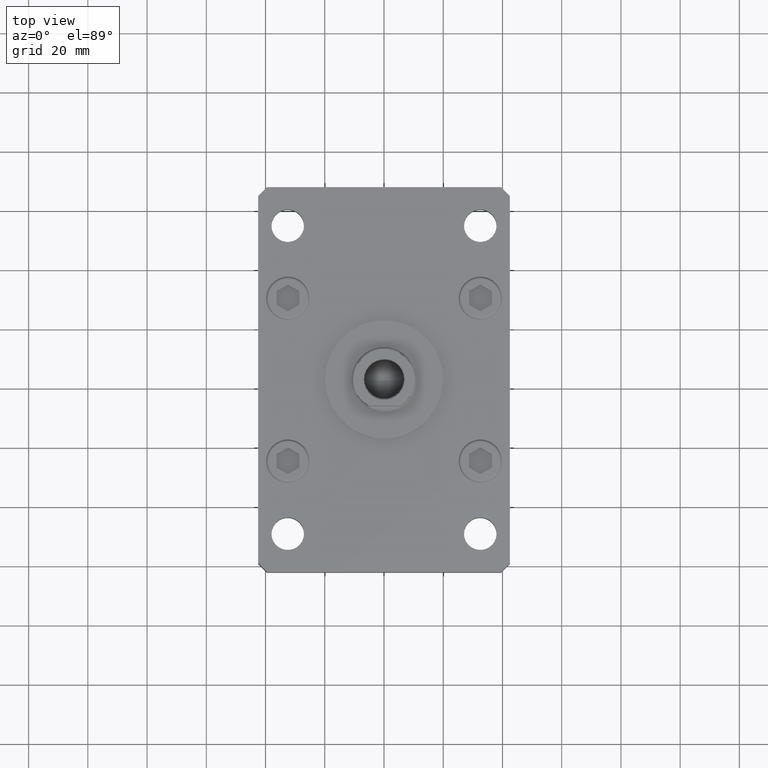
[diagram: clean part render]
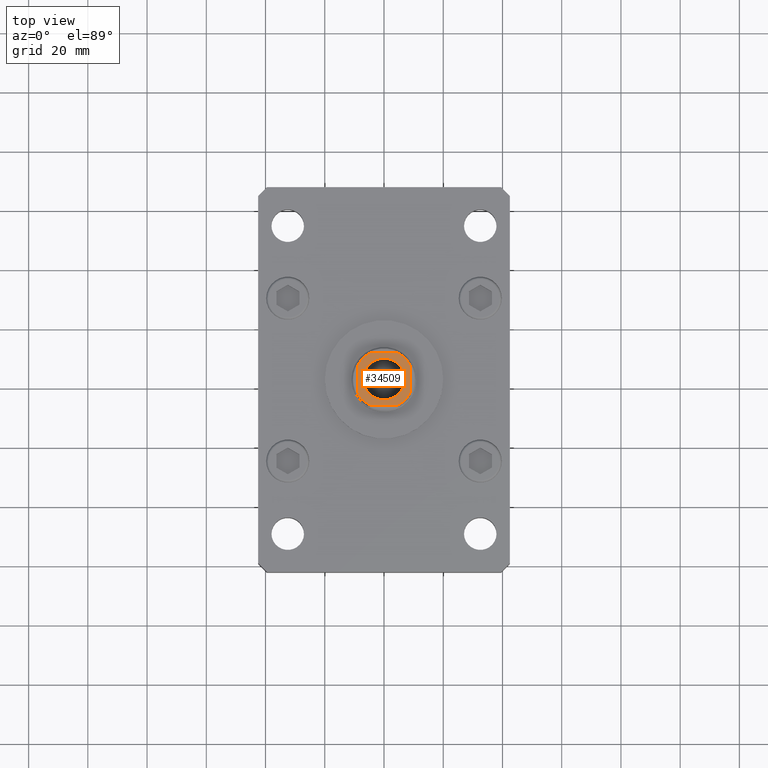
[diagram: same view with one face highlighted and labeled with its STEP entity id]
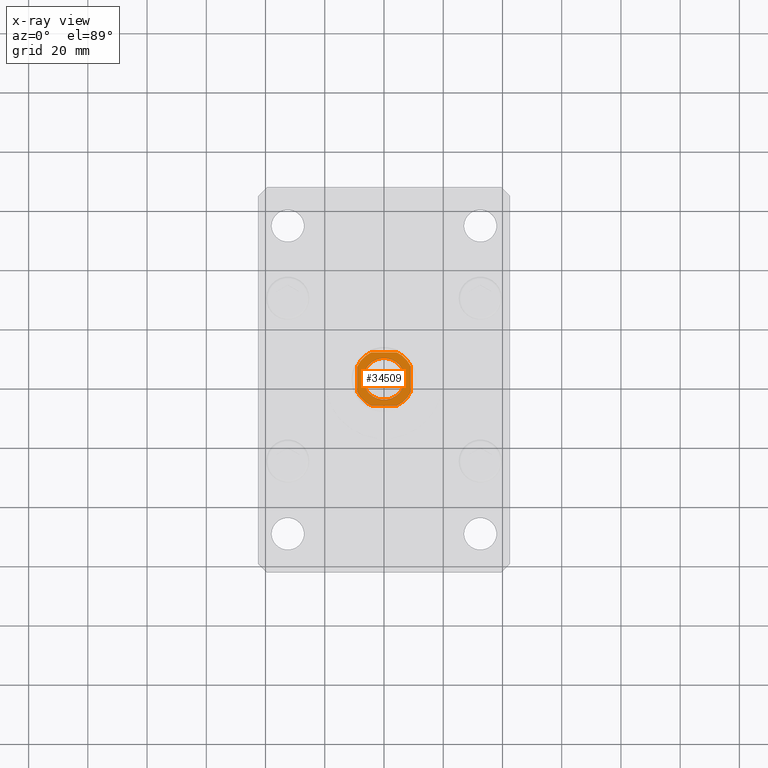
[diagram: x-ray of the same camera — body ghosted, the highlighted face saturated]
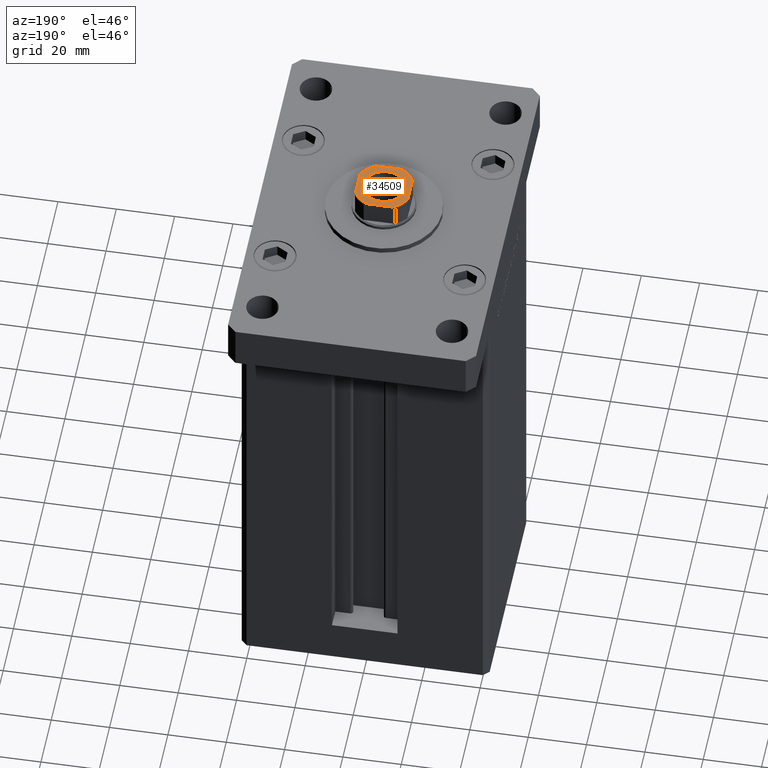
[diagram: same view with one face highlighted and labeled with its STEP entity id]
A machine part, top view. The second image highlights one B-rep face of the part: STEP entity #34509.
The next image is the same camera in x-ray: the body ghosted, the highlighted face saturated — about 0% of this face is hidden behind the body in this view.
A second angle (auxiliary view) of the same face is appended — the face is thin or edge-on in the first view.
In plain terms, the highlighted planar face has unit normal (0, 0, 1).
Its self-contained STEP definition (entity closure, byte-faithful):
#3 = CIRCLE ( 'NONE', #859, 7.049999999999986500 ) ;
#859 = AXIS2_PLACEMENT_3D ( 'NONE', #46993, #12616, #29156 ) ;
#1159 = EDGE_LOOP ( 'NONE', ( #35224, #29320 ) ) ;
#2752 = DIRECTION ( 'NONE',  ( -0.000000000000000000, 0.000000000000000000, 1.000000000000000000 ) ) ;
#3405 = CARTESIAN_POINT ( 'NONE',  ( 9.000000000000000000, 4.358898943540675752, 157.7500000000000000 ) ) ;
#4264 = AXIS2_PLACEMENT_3D ( 'NONE', #32564, #2752, #36652 ) ;
#4708 = CIRCLE ( 'NONE', #21133, 10.00000000000000000 ) ;
#4929 = AXIS2_PLACEMENT_3D ( 'NONE', #12228, #41554, #33664 ) ;
#5529 = ORIENTED_EDGE ( 'NONE', *, *, #7473, .T. ) ;
#5920 = CARTESIAN_POINT ( 'NONE',  ( 9.000000000000001776, -4.358898943540675752, 157.7500000000000000 ) ) ;
#6124 = ORIENTED_EDGE ( 'NONE', *, *, #15672, .T. ) ;
#6156 = CARTESIAN_POINT ( 'NONE',  ( 0.000000000000000000, 0.000000000000000000, 157.7500000000000000 ) ) ;
#6620 = DIRECTION ( 'NONE',  ( -0.000000000000000000, 0.000000000000000000, 1.000000000000000000 ) ) ;
#7451 = CIRCLE ( 'NONE', #32593, 10.00000000000000000 ) ;
#7473 = EDGE_CURVE ( 'NONE', #31453, #18294, #27411, .T. ) ;
#9755 = EDGE_CURVE ( 'NONE', #38448, #41141, #3, .T. ) ;
#9822 = ORIENTED_EDGE ( 'NONE', *, *, #36895, .T. ) ;
#10211 = DIRECTION ( 'NONE',  ( 0.000000000000000000, -0.000000000000000000, -1.000000000000000000 ) ) ;
#11455 = VERTEX_POINT ( 'NONE', #33466 ) ;
#11912 = DIRECTION ( 'NONE',  ( 1.000000000000000000, 0.000000000000000000, 0.000000000000000000 ) ) ;
#12228 = CARTESIAN_POINT ( 'NONE',  ( 0.000000000000000000, 0.000000000000000000, 157.7500000000000000 ) ) ;
#12616 = DIRECTION ( 'NONE',  ( 0.000000000000000000, -0.000000000000000000, -1.000000000000000000 ) ) ;
#14466 = ORIENTED_EDGE ( 'NONE', *, *, #41255, .T. ) ;
#14681 = LINE ( 'NONE', #18234, #36381 ) ;
#14943 = CARTESIAN_POINT ( 'NONE',  ( 0.000000000000000000, 0.000000000000000000, 157.7500000000000000 ) ) ;
#15672 = EDGE_CURVE ( 'NONE', #22648, #31528, #14681, .T. ) ;
#15795 = ORIENTED_EDGE ( 'NONE', *, *, #33011, .T. ) ;
#15802 = ORIENTED_EDGE ( 'NONE', *, *, #50809, .T. ) ;
#15986 = CARTESIAN_POINT ( 'NONE',  ( -8.999999999999998224, -9.000000000000001776, 157.7500000000000000 ) ) ;
#16006 = DIRECTION ( 'NONE',  ( -0.000000000000000000, 0.000000000000000000, 1.000000000000000000 ) ) ;
#16539 = LINE ( 'NONE', #15986, #52678 ) ;
#17115 = FACE_BOUND ( 'NONE', #1159, .T. ) ;
#17274 = VERTEX_POINT ( 'NONE', #47919 ) ;
#18002 = CARTESIAN_POINT ( 'NONE',  ( 4.358898943540671311, -9.000000000000001776, 157.7500000000000000 ) ) ;
#18234 = CARTESIAN_POINT ( 'NONE',  ( 9.000000000000000000, 8.999999999999998224, 157.7500000000000000 ) ) ;
#18294 = VERTEX_POINT ( 'NONE', #21349 ) ;
#18357 = CARTESIAN_POINT ( 'NONE',  ( 4.358898943540677529, 8.999999999999998224, 157.7500000000000000 ) ) ;
#19103 = DIRECTION ( 'NONE',  ( 1.000000000000000000, 0.000000000000000000, 0.000000000000000000 ) ) ;
#19562 = ORIENTED_EDGE ( 'NONE', *, *, #23111, .T. ) ;
#19648 = EDGE_CURVE ( 'NONE', #31528, #31453, #38381, .T. ) ;
#21025 = AXIS2_PLACEMENT_3D ( 'NONE', #43018, #6620, #19103 ) ;
#21133 = AXIS2_PLACEMENT_3D ( 'NONE', #14943, #16006, #36911 ) ;
#21349 = CARTESIAN_POINT ( 'NONE',  ( -4.358898943540678417, 8.999999999999998224, 157.7500000000000000 ) ) ;
#21818 = EDGE_LOOP ( 'NONE', ( #9822, #14466, #15802, #19562, #6124, #42419, #5529, #15795 ) ) ;
#22648 = VERTEX_POINT ( 'NONE', #5920 ) ;
#22806 = CARTESIAN_POINT ( 'NONE',  ( 7.049999999999986500, 0.000000000000000000, 157.7500000000000000 ) ) ;
#23111 = EDGE_CURVE ( 'NONE', #47199, #22648, #4708, .T. ) ;
#23243 = AXIS2_PLACEMENT_3D ( 'NONE', #6156, #10211, #30830 ) ;
#24137 = CIRCLE ( 'NONE', #4264, 10.00000000000000000 ) ;
#24635 = DIRECTION ( 'NONE',  ( 9.637352644315595243E-17, -1.000000000000000000, 0.000000000000000000 ) ) ;
#27411 = LINE ( 'NONE', #32039, #50144 ) ;
#29030 = FACE_OUTER_BOUND ( 'NONE', #21818, .T. ) ;
#29156 = DIRECTION ( 'NONE',  ( 1.000000000000000000, 0.000000000000000000, 0.000000000000000000 ) ) ;
#29320 = ORIENTED_EDGE ( 'NONE', *, *, #9755, .T. ) ;
#30655 = VERTEX_POINT ( 'NONE', #43887 ) ;
#30830 = DIRECTION ( 'NONE',  ( 1.000000000000000000, 0.000000000000000000, 0.000000000000000000 ) ) ;
#31453 = VERTEX_POINT ( 'NONE', #18357 ) ;
#31528 = VERTEX_POINT ( 'NONE', #3405 ) ;
#31746 = CARTESIAN_POINT ( 'NONE',  ( 0.000000000000000000, 0.000000000000000000, 157.7500000000000000 ) ) ;
#32039 = CARTESIAN_POINT ( 'NONE',  ( -9.000000000000000000, 8.999999999999998224, 157.7500000000000000 ) ) ;
#32524 = CARTESIAN_POINT ( 'NONE',  ( -9.000000000000000000, 8.999999999999998224, 157.7500000000000000 ) ) ;
#32564 = CARTESIAN_POINT ( 'NONE',  ( 0.000000000000000000, 0.000000000000000000, 157.7500000000000000 ) ) ;
#32593 = AXIS2_PLACEMENT_3D ( 'NONE', #31746, #40458, #36385 ) ;
#33011 = EDGE_CURVE ( 'NONE', #18294, #17274, #7451, .T. ) ;
#33466 = CARTESIAN_POINT ( 'NONE',  ( -4.358898943540671311, -9.000000000000001776, 157.7500000000000000 ) ) ;
#33664 = DIRECTION ( 'NONE',  ( 1.000000000000000000, 0.000000000000000000, 0.000000000000000000 ) ) ;
#34509 = ADVANCED_FACE ( 'NONE', ( #17115, #29030 ), #49126, .T. ) ;
#35224 = ORIENTED_EDGE ( 'NONE', *, *, #53189, .T. ) ;
#36296 = CIRCLE ( 'NONE', #23243, 7.049999999999986500 ) ;
#36381 = VECTOR ( 'NONE', #42664, 1000.000000000000000 ) ;
#36385 = DIRECTION ( 'NONE',  ( 1.000000000000000000, 0.000000000000000000, 0.000000000000000000 ) ) ;
#36397 = DIRECTION ( 'NONE',  ( -1.000000000000000000, -0.000000000000000000, -0.000000000000000000 ) ) ;
#36652 = DIRECTION ( 'NONE',  ( 1.000000000000000000, 0.000000000000000000, 0.000000000000000000 ) ) ;
#36895 = EDGE_CURVE ( 'NONE', #17274, #30655, #53162, .T. ) ;
#36911 = DIRECTION ( 'NONE',  ( 1.000000000000000000, 0.000000000000000000, 0.000000000000000000 ) ) ;
#38381 = CIRCLE ( 'NONE', #21025, 10.00000000000000000 ) ;
#38448 = VERTEX_POINT ( 'NONE', #41588 ) ;
#40458 = DIRECTION ( 'NONE',  ( -0.000000000000000000, 0.000000000000000000, 1.000000000000000000 ) ) ;
#41141 = VERTEX_POINT ( 'NONE', #22806 ) ;
#41255 = EDGE_CURVE ( 'NONE', #30655, #11455, #24137, .T. ) ;
#41554 = DIRECTION ( 'NONE',  ( -0.000000000000000000, 0.000000000000000000, 1.000000000000000000 ) ) ;
#41588 = CARTESIAN_POINT ( 'NONE',  ( -7.049999999999986500, 8.633759933988823212E-16, 157.7500000000000000 ) ) ;
#42268 = VECTOR ( 'NONE', #24635, 1000.000000000000000 ) ;
#42419 = ORIENTED_EDGE ( 'NONE', *, *, #19648, .T. ) ;
#42664 = DIRECTION ( 'NONE',  ( -9.637352644315595243E-17, 1.000000000000000000, -0.000000000000000000 ) ) ;
#43018 = CARTESIAN_POINT ( 'NONE',  ( 0.000000000000000000, 0.000000000000000000, 157.7500000000000000 ) ) ;
#43887 = CARTESIAN_POINT ( 'NONE',  ( -9.000000000000000000, -4.358898943540675752, 157.7500000000000000 ) ) ;
#46993 = CARTESIAN_POINT ( 'NONE',  ( 0.000000000000000000, 0.000000000000000000, 157.7500000000000000 ) ) ;
#47199 = VERTEX_POINT ( 'NONE', #18002 ) ;
#47919 = CARTESIAN_POINT ( 'NONE',  ( -9.000000000000000000, 4.358898943540674864, 157.7500000000000000 ) ) ;
#49126 = PLANE ( 'NONE',  #4929 ) ;
#50144 = VECTOR ( 'NONE', #36397, 1000.000000000000000 ) ;
#50809 = EDGE_CURVE ( 'NONE', #11455, #47199, #16539, .T. ) ;
#52678 = VECTOR ( 'NONE', #11912, 1000.000000000000000 ) ;
#53162 = LINE ( 'NONE', #32524, #42268 ) ;
#53189 = EDGE_CURVE ( 'NONE', #41141, #38448, #36296, .T. ) ;